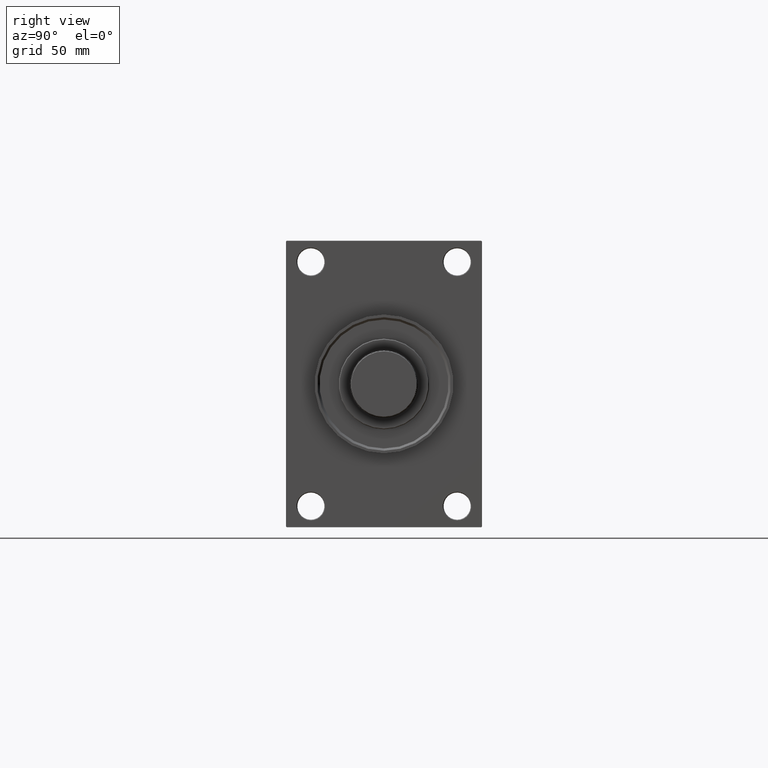
[diagram: clean part render]
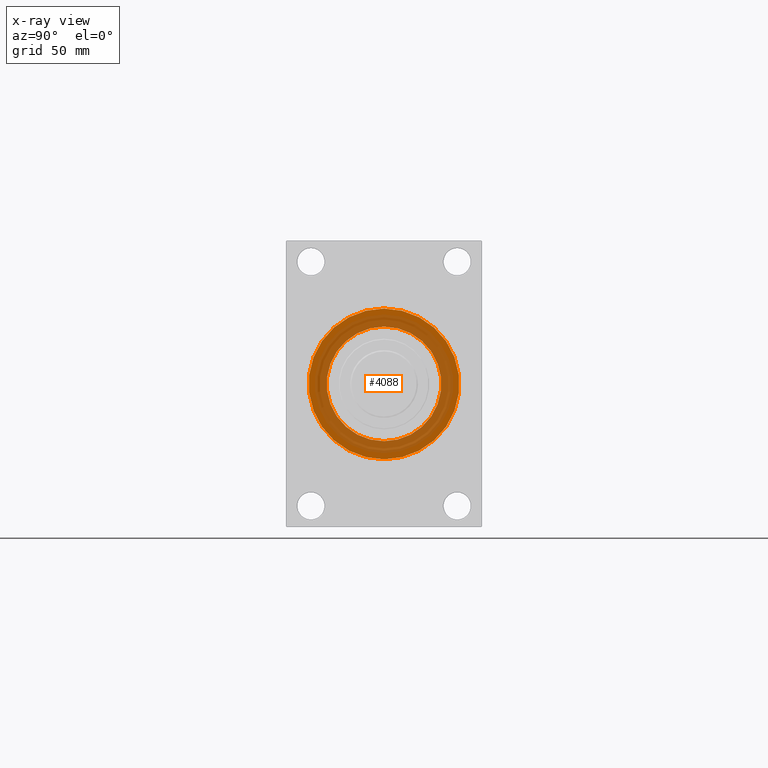
[diagram: x-ray — body ghosted, one internal face saturated and labeled with its STEP entity id]
A machine part, right view, then the same camera in x-ray: the body is ghosted and one INTERNAL B-rep face — a face not visible from any outside direction — is saturated and labeled: STEP entity #4088.
In plain terms, the highlighted planar face has unit normal (-1, 0, 0).
Its self-contained STEP definition (entity closure, byte-faithful):
#1338 = EDGE_CURVE ( 'NONE', #5092, #19538, #16791, .T. ) ;
#2479 = CARTESIAN_POINT ( 'NONE',  ( 256.0000000000000000, -2.602085213965210642E-15, 0.000000000000000000 ) ) ;
#2949 = VERTEX_POINT ( 'NONE', #23588 ) ;
#3322 = EDGE_CURVE ( 'NONE', #19538, #5092, #28976, .T. ) ;
#3732 = DIRECTION ( 'NONE',  ( 0.000000000000000000, 0.000000000000000000, 1.000000000000000000 ) ) ;
#3995 = CARTESIAN_POINT ( 'NONE',  ( 256.0000000000000000, 4.653657836759941941E-15, 38.00000000000000000 ) ) ;
#4088 = ADVANCED_FACE ( 'NONE', ( #18228, #40471 ), #33614, .T. ) ;
#5092 = VERTEX_POINT ( 'NONE', #35073 ) ;
#5909 = CARTESIAN_POINT ( 'NONE',  ( 256.0000000000000000, 0.000000000000000000, 0.000000000000000000 ) ) ;
#6229 = EDGE_LOOP ( 'NONE', ( #24849, #47029 ) ) ;
#6641 = DIRECTION ( 'NONE',  ( -1.000000000000000000, 0.000000000000000000, -0.000000000000000000 ) ) ;
#7392 = CARTESIAN_POINT ( 'NONE',  ( 256.0000000000000000, 0.000000000000000000, 0.000000000000000000 ) ) ;
#8867 = AXIS2_PLACEMENT_3D ( 'NONE', #2479, #47190, #21778 ) ;
#9467 = ORIENTED_EDGE ( 'NONE', *, *, #11898, .F. ) ;
#10606 = EDGE_CURVE ( 'NONE', #2949, #46240, #35332, .T. ) ;
#11898 = EDGE_CURVE ( 'NONE', #46240, #2949, #25246, .T. ) ;
#12575 = AXIS2_PLACEMENT_3D ( 'NONE', #5909, #6641, #21544 ) ;
#14279 = AXIS2_PLACEMENT_3D ( 'NONE', #15083, #18510, #33419 ) ;
#15083 = CARTESIAN_POINT ( 'NONE',  ( 256.0000000000000000, -2.602085213965210642E-15, 0.000000000000000000 ) ) ;
#16791 = CIRCLE ( 'NONE', #44128, 38.00000000000000000 ) ;
#17557 = CARTESIAN_POINT ( 'NONE',  ( 256.0000000000000000, 3.521148781771555838E-15, -50.00000000000000000 ) ) ;
#18228 = FACE_BOUND ( 'NONE', #6229, .T. ) ;
#18510 = DIRECTION ( 'NONE',  ( 1.000000000000000000, 0.000000000000000000, 0.000000000000000000 ) ) ;
#18708 = DIRECTION ( 'NONE',  ( -1.000000000000000000, 0.000000000000000000, -0.000000000000000000 ) ) ;
#19538 = VERTEX_POINT ( 'NONE', #3995 ) ;
#21544 = DIRECTION ( 'NONE',  ( 0.000000000000000000, 0.000000000000000000, 1.000000000000000000 ) ) ;
#21778 = DIRECTION ( 'NONE',  ( 0.000000000000000000, 0.000000000000000000, -1.000000000000000000 ) ) ;
#23588 = CARTESIAN_POINT ( 'NONE',  ( 256.0000000000000000, -2.602085213965210642E-15, 50.00000000000000000 ) ) ;
#24849 = ORIENTED_EDGE ( 'NONE', *, *, #1338, .F. ) ;
#25246 = CIRCLE ( 'NONE', #8867, 50.00000000000000000 ) ;
#28976 = CIRCLE ( 'NONE', #12575, 38.00000000000000000 ) ;
#29769 = AXIS2_PLACEMENT_3D ( 'NONE', #48288, #18708, #33137 ) ;
#33137 = DIRECTION ( 'NONE',  ( -0.000000000000000000, 0.000000000000000000, 1.000000000000000000 ) ) ;
#33419 = DIRECTION ( 'NONE',  ( 0.000000000000000000, 0.000000000000000000, -1.000000000000000000 ) ) ;
#33614 = PLANE ( 'NONE',  #29769 ) ;
#34700 = ORIENTED_EDGE ( 'NONE', *, *, #10606, .F. ) ;
#35073 = CARTESIAN_POINT ( 'NONE',  ( 256.0000000000000000, 0.000000000000000000, -38.00000000000000000 ) ) ;
#35332 = CIRCLE ( 'NONE', #14279, 50.00000000000000000 ) ;
#37070 = EDGE_LOOP ( 'NONE', ( #34700, #9467 ) ) ;
#37432 = DIRECTION ( 'NONE',  ( -1.000000000000000000, 0.000000000000000000, -0.000000000000000000 ) ) ;
#40471 = FACE_OUTER_BOUND ( 'NONE', #37070, .T. ) ;
#44128 = AXIS2_PLACEMENT_3D ( 'NONE', #7392, #37432, #3732 ) ;
#46240 = VERTEX_POINT ( 'NONE', #17557 ) ;
#47029 = ORIENTED_EDGE ( 'NONE', *, *, #3322, .F. ) ;
#47190 = DIRECTION ( 'NONE',  ( 1.000000000000000000, 0.000000000000000000, 0.000000000000000000 ) ) ;
#48288 = CARTESIAN_POINT ( 'NONE',  ( 256.0000000000000000, 0.000000000000000000, 0.000000000000000000 ) ) ;